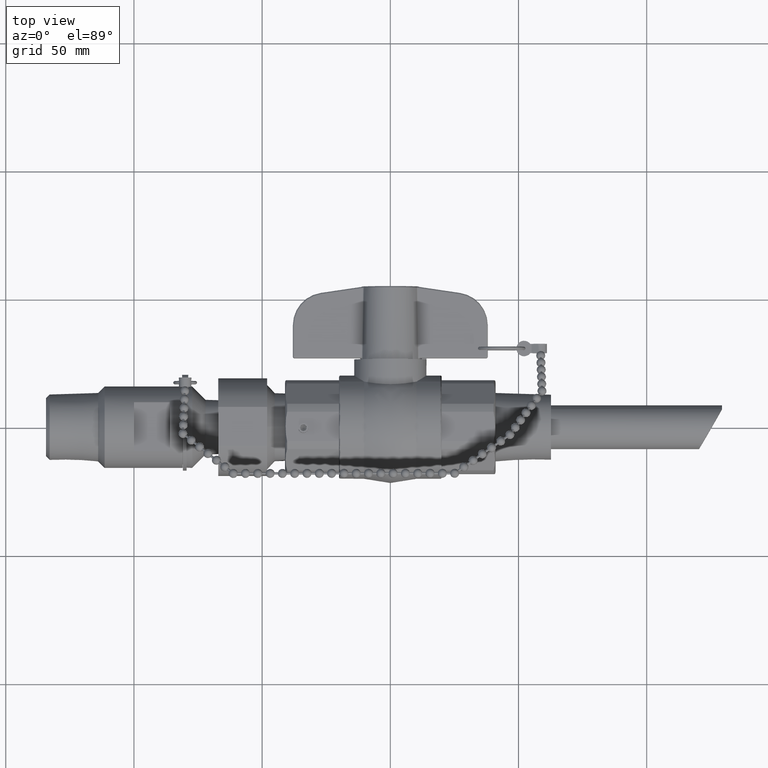
[diagram: clean part render]
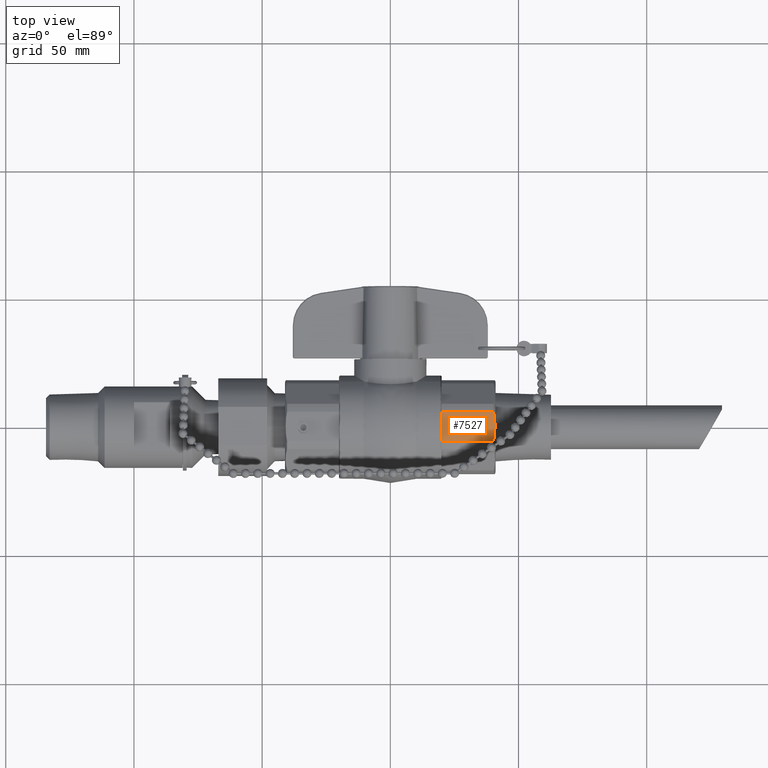
[diagram: same view with one face highlighted and labeled with its STEP entity id]
A machine part, top view. The second image highlights one B-rep face of the part: STEP entity #7527.
In plain terms, the highlighted face is a freeform B-spline surface patch.
Its self-contained STEP definition (entity closure, byte-faithful):
#6507=CARTESIAN_POINT('',(1.585112702707064,0.225161608628114,0.717500000000000));
#6508=VERTEX_POINT('',#6507);
#6516=CARTESIAN_POINT('',(1.585112702707064,-0.225161608628114,0.717500000000000));
#6517=VERTEX_POINT('',#6516);
#6518=CARTESIAN_POINT('',(1.585112702707064,0.225161608628114,0.717500000000000));
#6519=CARTESIAN_POINT('',(1.593438193017208,0.194850896924235,0.717500000000000));
#6520=CARTESIAN_POINT('',(1.598495457448399,0.162194368817727,0.717500000000000));
#6521=CARTESIAN_POINT('',(1.606212016415179,0.085193501644084,0.717500000000000));
#6522=CARTESIAN_POINT('',(1.607564392373896,0.040601387131935,0.717500000000000));
#6523=CARTESIAN_POINT('',(1.607564392373896,0.0,0.717500000000000));
#6524=CARTESIAN_POINT('',(1.607564392373896,-0.040601387131935,0.717500000000000));
#6525=CARTESIAN_POINT('',(1.606212016415179,-0.085193501644084,0.717500000000000));
#6526=CARTESIAN_POINT('',(1.598495457448399,-0.162194368817727,0.717500000000000));
#6527=CARTESIAN_POINT('',(1.593438193017208,-0.194850896924236,0.717500000000000));
#6528=CARTESIAN_POINT('',(1.585112702707064,-0.225161608628114,0.717500000000000));
#6529=B_SPLINE_CURVE_WITH_KNOTS('',3,(#6518,#6519,#6520,#6521,#6522,#6523,#6524,#6525,#6526,#6527,#6528),.UNSPECIFIED.,.F.,.U.,(4,2,3,2,4),(-0.541598222803650,-0.309382569945343,0.0,0.309382569945343,0.541598222803650),.UNSPECIFIED.);
#6530=EDGE_CURVE('',#6508,#6517,#6529,.T.);
#7485=CARTESIAN_POINT('',(0.788000000000000,-0.225161608628114,0.717500000000000));
#7486=VERTEX_POINT('',#7485);
#7487=CARTESIAN_POINT('',(0.788000000000000,-0.225161608628114,0.717500000000000));
#7488=DIRECTION('',(1.0,0.0,0.0));
#7489=VECTOR('',#7488,0.797112702707065);
#7490=LINE('',#7487,#7489);
#7491=EDGE_CURVE('',#7486,#6517,#7490,.T.);
#7504=CARTESIAN_POINT('',(1.607664385913736,0.225261602167954,0.717500000000000));
#7505=CARTESIAN_POINT('',(0.788000000000000,0.225261602167954,0.717500000000000));
#7506=CARTESIAN_POINT('',(1.607664385913736,-0.225261602167954,0.717500000000000));
#7507=CARTESIAN_POINT('',(0.788000000000000,-0.225261602167954,0.717500000000000));
#7508=B_SPLINE_SURFACE_WITH_KNOTS('',1,1,((#7504,#7506),(#7505,#7507)),.UNSPECIFIED.,.F.,.F.,.U.,(2,2),(2,2),(0.0,0.819664385913736),(0.0,0.450523204335909),.UNSPECIFIED.);
#7509=ORIENTED_EDGE('',*,*,#6530,.F.);
#7510=CARTESIAN_POINT('',(0.788000000000000,0.225161608628114,0.717500000000000));
#7511=VERTEX_POINT('',#7510);
#7512=CARTESIAN_POINT('',(1.585112702707064,0.225161608628114,0.717500000000000));
#7513=DIRECTION('',(-1.0,0.0,0.0));
#7514=VECTOR('',#7513,0.797112702707065);
#7515=LINE('',#7512,#7514);
#7516=EDGE_CURVE('',#6508,#7511,#7515,.T.);
#7517=ORIENTED_EDGE('',*,*,#7516,.T.);
#7518=CARTESIAN_POINT('',(0.788000000000000,-0.225161608628114,0.717500000000000));
#7519=DIRECTION('',(0.0,1.0,0.0));
#7520=VECTOR('',#7519,0.450323217256228);
#7521=LINE('',#7518,#7520);
#7522=EDGE_CURVE('',#7486,#7511,#7521,.T.);
#7523=ORIENTED_EDGE('',*,*,#7522,.F.);
#7524=ORIENTED_EDGE('',*,*,#7491,.T.);
#7525=EDGE_LOOP('',(#7509,#7517,#7523,#7524));
#7526=FACE_OUTER_BOUND('',#7525,.T.);
#7527=ADVANCED_FACE('',(#7526),#7508,.T.);